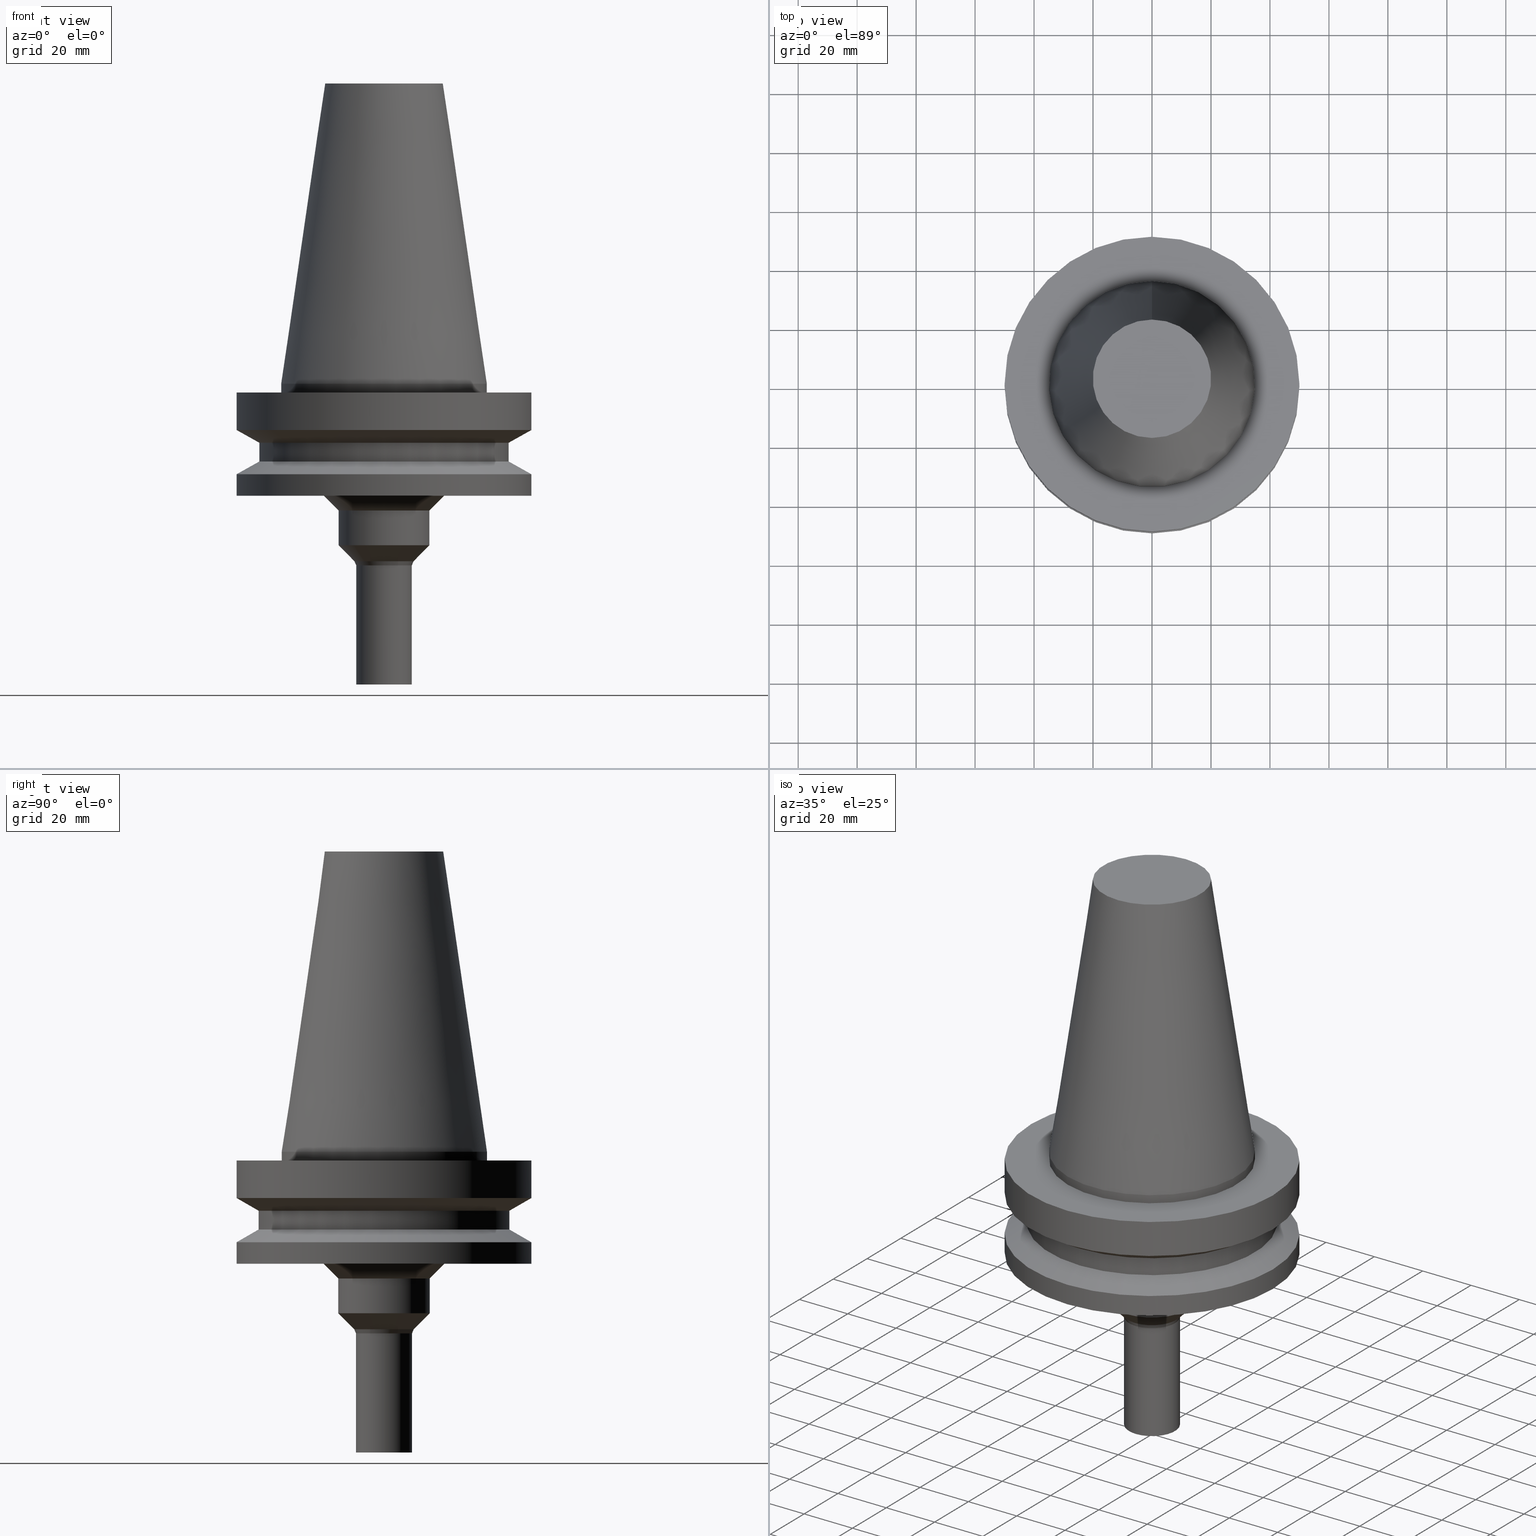
[diagram: canonical four-view strip — front | top / right | iso, engineering-drawing reading convention]
A machine part, canonical four-view strip (front | top / right | iso — engineering-drawing reading convention). The complete STEP part file that produces these views, byte-faithful:
ISO-10303-21;
HEADER;
FILE_DESCRIPTION((''),'1');
FILE_NAME('//Big_tech03/bigt/Translate/BIG-HP/\X2\30C030A630F330ED30FC30C930C730FC30BF\X0\/201309/BT-BBT/BT-BBT50/21_CK\X2\FF8EFF9EFF70FF98FF9DFF78FF9EFF7CFF7DFF83FF91\X0\/01_CK\X2\FF8DFF9EFF70FF7DFF8EFF99FF80FF9E\X0\CK/BT50-CK1-135.stp','2013-09-16T05:15:05',(''),(''),'Spatial Interop R18','Kubotek KeyCreator V8.5.1 (14335)',' ');
FILE_SCHEMA(('CONFIG_CONTROL_DESIGN'));
ENDSEC;
DATA;
#1=DESIGN_CONTEXT('',#27,'design');
#2=APPLICATION_PROTOCOL_DEFINITION('INTERNATIONAL STANDARD','config_control_design',1994,#27);
#3=PRODUCT_CATEGORY_RELATIONSHIP('NONE','NONE',#28,#29);
#4=DATE_AND_TIME(#30,#31);
#5=DATE_TIME_ROLE('creation_date');
#6=DATE_TIME_ROLE('classification_date');
#7=PERSON_AND_ORGANIZATION_ROLE('creator');
#8=PERSON_AND_ORGANIZATION_ROLE('design_supplier');
#9=PERSON_AND_ORGANIZATION_ROLE('classification_officer');
#10=PERSON_AND_ORGANIZATION_ROLE('design_owner');
#11=APPROVAL_PERSON_ORGANIZATION(#32,#33,#34);
#12=APPROVAL_DATE_TIME(#4,#33);
#13=CC_DESIGN_APPROVAL(#33,(#35,#36,#37));
#14=CC_DESIGN_DATE_AND_TIME_ASSIGNMENT(#4,#5,(#37));
#15=CC_DESIGN_DATE_AND_TIME_ASSIGNMENT(#4,#6,(#35));
#16=CC_DESIGN_PERSON_AND_ORGANIZATION_ASSIGNMENT(#32,#10,(#38));
#17=CC_DESIGN_PERSON_AND_ORGANIZATION_ASSIGNMENT(#32,#7,(#37));
#18=CC_DESIGN_PERSON_AND_ORGANIZATION_ASSIGNMENT(#32,#7,(#36));
#19=CC_DESIGN_PERSON_AND_ORGANIZATION_ASSIGNMENT(#32,#8,(#36));
#20=CC_DESIGN_SECURITY_CLASSIFICATION(#35,(#36));
#21=CC_DESIGN_PERSON_AND_ORGANIZATION_ASSIGNMENT(#32,#9,(#35));
#22=SHAPE_DEFINITION_REPRESENTATION(#39,#40);
#23= (GEOMETRIC_REPRESENTATION_CONTEXT(3)GLOBAL_UNCERTAINTY_ASSIGNED_CONTEXT((#43))GLOBAL_UNIT_ASSIGNED_CONTEXT((#45,#46,#47))REPRESENTATION_CONTEXT('NONE','WORKSPACE'));
#27=APPLICATION_CONTEXT('CONFIGURATION CONTROLLED 3D DESIGNS OF MECHANICAL PARTS AND ASSEMBLIES');
#28=PRODUCT_CATEGORY('part','NONE');
#29=PRODUCT_RELATED_PRODUCT_CATEGORY('detail',' ',(#38));
#30=CALENDAR_DATE(2013,16,8);
#31=LOCAL_TIME(14,15,5.0,#49);
#32=PERSON_AND_ORGANIZATION(#50,#51);
#33=APPROVAL(#52,'SOLID MODEL');
#34=APPROVAL_ROLE('APPROVED');
#35=SECURITY_CLASSIFICATION('','',#53);
#36=PRODUCT_DEFINITION_FORMATION_WITH_SPECIFIED_SOURCE(' ','NONE',#38,.NOT_KNOWN.);
#37=PRODUCT_DEFINITION('NONE','NONE',#36,#1);
#38=PRODUCT('1','1','PART-1-DESC',(#54));
#39=PRODUCT_DEFINITION_SHAPE('NONE','NONE',#37);
#40=ADVANCED_BREP_SHAPE_REPRESENTATION('1',(#55,#56),#23);
#43=UNCERTAINTY_MEASURE_WITH_UNIT(LENGTH_MEASURE(1.0E-006),#45,'','');
#45= (CONVERSION_BASED_UNIT('MILLIMETRE',#59)LENGTH_UNIT()NAMED_UNIT(#62));
#46= (NAMED_UNIT(#64)PLANE_ANGLE_UNIT()SI_UNIT($,.RADIAN.));
#47= (NAMED_UNIT(#64)SOLID_ANGLE_UNIT()SI_UNIT($,.STERADIAN.));
#49=COORDINATED_UNIVERSAL_TIME_OFFSET(9,0,.AHEAD.);
#50=PERSON('','UNSPECIFIED',$,$,$,$);
#51=ORGANIZATION('UNSPECIFIED','UNSPECIFIED','UNSPECIFIED');
#52=APPROVAL_STATUS('approved');
#53=SECURITY_CLASSIFICATION_LEVEL('unclassified');
#54=MECHANICAL_CONTEXT('',#27,'mechanical');
#55=MANIFOLD_SOLID_BREP('1',#70);
#56=AXIS2_PLACEMENT_3D('',#71,#72,#73);
#59=LENGTH_MEASURE_WITH_UNIT(LENGTH_MEASURE(1.0),#74);
#62=DIMENSIONAL_EXPONENTS(1.0,0.0,0.0,0.0,0.0,0.0,0.0);
#64=DIMENSIONAL_EXPONENTS(0.0,0.0,0.0,0.0,0.0,0.0,0.0);
#70=CLOSED_SHELL('',(#75,#76,#77,#78,#79,#80,#81,#82,#83,#84,#85,#86,#87,#88,#89,#90));
#71=CARTESIAN_POINT('',(0.0,0.0,0.0));
#72=DIRECTION('',(0.0,0.0,1.0));
#73=DIRECTION('',(1.0,0.0,0.0));
#74= (NAMED_UNIT(#62)LENGTH_UNIT()SI_UNIT(.MILLI.,.METRE.));
#75=ADVANCED_FACE('',(#92),#93,.T.);
#76=ADVANCED_FACE('',(#94,#95),#96,.T.);
#77=ADVANCED_FACE('',(#97,#98),#99,.T.);
#78=ADVANCED_FACE('',(#100,#101),#102,.T.);
#79=ADVANCED_FACE('',(#103,#104),#105,.T.);
#80=ADVANCED_FACE('',(#106,#107),#108,.T.);
#81=ADVANCED_FACE('',(#109,#110),#111,.T.);
#82=ADVANCED_FACE('',(#112,#113),#114,.T.);
#83=ADVANCED_FACE('',(#115,#116),#117,.T.);
#84=ADVANCED_FACE('',(#118,#119),#120,.T.);
#85=ADVANCED_FACE('',(#121,#122),#123,.T.);
#86=ADVANCED_FACE('',(#124,#125),#126,.T.);
#87=ADVANCED_FACE('',(#127,#128),#129,.T.);
#88=ADVANCED_FACE('',(#130,#131),#132,.T.);
#89=ADVANCED_FACE('',(#133,#134),#135,.T.);
#90=ADVANCED_FACE('',(#136),#137,.T.);
#92=FACE_OUTER_BOUND('',#138,.T.);
#93=PLANE('',#139);
#94=FACE_BOUND('',#140,.T.);
#95=FACE_BOUND('',#141,.T.);
#96=CONICAL_SURFACE('',#142,27.5020833325942,0.144812498253157);
#97=FACE_BOUND('',#143,.T.);
#98=FACE_BOUND('',#144,.T.);
#99=CYLINDRICAL_SURFACE('',#145,34.925);
#100=FACE_OUTER_BOUND('',#146,.T.);
#101=FACE_BOUND('',#147,.T.);
#102=PLANE('',#148);
#103=FACE_BOUND('',#149,.T.);
#104=FACE_BOUND('',#150,.T.);
#105=CYLINDRICAL_SURFACE('',#151,50.0);
#106=FACE_BOUND('',#152,.T.);
#107=FACE_BOUND('',#153,.T.);
#108=CONICAL_SURFACE('',#154,46.25,1.04719755108882);
#109=FACE_BOUND('',#155,.T.);
#110=FACE_BOUND('',#156,.T.);
#111=CYLINDRICAL_SURFACE('',#157,42.5);
#112=FACE_BOUND('',#158,.T.);
#113=FACE_BOUND('',#159,.T.);
#114=CONICAL_SURFACE('',#160,46.25,1.04719755108882);
#115=FACE_BOUND('',#161,.T.);
#116=FACE_BOUND('',#162,.T.);
#117=CYLINDRICAL_SURFACE('',#163,50.0);
#118=FACE_BOUND('',#164,.T.);
#119=FACE_OUTER_BOUND('',#165,.T.);
#120=PLANE('',#166);
#121=FACE_BOUND('',#167,.T.);
#122=FACE_BOUND('',#168,.T.);
#123=CONICAL_SURFACE('',#169,18.0,0.785398163397448);
#124=FACE_BOUND('',#170,.T.);
#125=FACE_BOUND('',#171,.T.);
#126=CYLINDRICAL_SURFACE('',#172,15.5);
#127=FACE_BOUND('',#173,.T.);
#128=FACE_BOUND('',#174,.T.);
#129=CONICAL_SURFACE('',#175,12.7928932171354,0.785398163397448);
#130=FACE_BOUND('',#176,.T.);
#131=FACE_BOUND('',#177,.T.);
#132=CONICAL_SURFACE('',#178,9.79289321713542,0.392699081698724);
#133=FACE_BOUND('',#179,.T.);
#134=FACE_BOUND('',#180,.T.);
#135=CYLINDRICAL_SURFACE('',#181,9.5);
#136=FACE_OUTER_BOUND('',#182,.T.);
#137=PLANE('',#183);
#138=EDGE_LOOP('',(#184));
#139=AXIS2_PLACEMENT_3D('',#185,#186,#187);
#140=EDGE_LOOP('',(#188));
#141=EDGE_LOOP('',(#189));
#142=AXIS2_PLACEMENT_3D('',#190,#191,#192);
#143=EDGE_LOOP('',(#193));
#144=EDGE_LOOP('',(#194));
#145=AXIS2_PLACEMENT_3D('',#195,#196,#197);
#146=EDGE_LOOP('',(#198));
#147=EDGE_LOOP('',(#199));
#148=AXIS2_PLACEMENT_3D('',#200,#201,#202);
#149=EDGE_LOOP('',(#203));
#150=EDGE_LOOP('',(#204));
#151=AXIS2_PLACEMENT_3D('',#205,#206,#207);
#152=EDGE_LOOP('',(#208));
#153=EDGE_LOOP('',(#209));
#154=AXIS2_PLACEMENT_3D('',#210,#211,#212);
#155=EDGE_LOOP('',(#213));
#156=EDGE_LOOP('',(#214));
#157=AXIS2_PLACEMENT_3D('',#215,#216,#217);
#158=EDGE_LOOP('',(#218));
#159=EDGE_LOOP('',(#219));
#160=AXIS2_PLACEMENT_3D('',#220,#221,#222);
#161=EDGE_LOOP('',(#223));
#162=EDGE_LOOP('',(#224));
#163=AXIS2_PLACEMENT_3D('',#225,#226,#227);
#164=EDGE_LOOP('',(#228));
#165=EDGE_LOOP('',(#229));
#166=AXIS2_PLACEMENT_3D('',#230,#231,#232);
#167=EDGE_LOOP('',(#233));
#168=EDGE_LOOP('',(#234));
#169=AXIS2_PLACEMENT_3D('',#235,#236,#237);
#170=EDGE_LOOP('',(#238));
#171=EDGE_LOOP('',(#239));
#172=AXIS2_PLACEMENT_3D('',#240,#241,#242);
#173=EDGE_LOOP('',(#243));
#174=EDGE_LOOP('',(#244));
#175=AXIS2_PLACEMENT_3D('',#245,#246,#247);
#176=EDGE_LOOP('',(#248));
#177=EDGE_LOOP('',(#249));
#178=AXIS2_PLACEMENT_3D('',#250,#251,#252);
#179=EDGE_LOOP('',(#253));
#180=EDGE_LOOP('',(#254));
#181=AXIS2_PLACEMENT_3D('',#255,#256,#257);
#182=EDGE_LOOP('',(#258));
#183=AXIS2_PLACEMENT_3D('',#259,#260,#261);
#184=ORIENTED_EDGE('',*,*,#262,.F.);
#185=CARTESIAN_POINT('',(-6.23345220766003E-015,10.0395833325942,101.8));
#186=DIRECTION('',(-6.12323399573677E-017,-1.22464679914735E-016,1.0));
#187=DIRECTION('',(1.23259516440783E-032,-1.0,-1.22464679914735E-016));
#188=ORIENTED_EDGE('',*,*,#263,.F.);
#189=ORIENTED_EDGE('',*,*,#262,.T.);
#190=CARTESIAN_POINT('',(-3.11672610383001E-015,-6.23345220766003E-015,50.9));
#191=DIRECTION('',(6.12323399573677E-017,1.22464679914678E-016,-1.0));
#192=DIRECTION('',(-1.232595164408E-032,1.0,1.22464679914678E-016));
#193=ORIENTED_EDGE('',*,*,#264,.F.);
#194=ORIENTED_EDGE('',*,*,#263,.T.);
#195=CARTESIAN_POINT('',(9.18485099360515E-017,1.83697019872103E-016,-1.5));
#196=DIRECTION('',(-6.12323399573677E-017,-1.22464679914705E-016,1.0));
#197=DIRECTION('',(-1.23259516440742E-032,1.0,1.22464679914705E-016));
#198=ORIENTED_EDGE('',*,*,#265,.F.);
#199=ORIENTED_EDGE('',*,*,#264,.T.);
#200=CARTESIAN_POINT('',(1.83697019872102E-016,42.4625,-2.99999999999999));
#201=DIRECTION('',(-6.12323399573677E-017,-1.22464679914735E-016,1.0));
#202=DIRECTION('',(1.23259516440783E-032,-1.0,-1.22464679914735E-016));
#203=ORIENTED_EDGE('',*,*,#266,.F.);
#204=ORIENTED_EDGE('',*,*,#265,.T.);
#205=CARTESIAN_POINT('',(5.72522378601387E-016,1.14504475720277E-015,-9.34999999999999));
#206=DIRECTION('',(-6.12323399573677E-017,-1.22464679914672E-016,1.0));
#207=DIRECTION('',(-1.23259516440783E-032,1.0,1.22464679914672E-016));
#208=ORIENTED_EDGE('',*,*,#267,.F.);
#209=ORIENTED_EDGE('',*,*,#266,.T.);
#210=CARTESIAN_POINT('',(1.09391964220428E-015,2.18783928440857E-015,-17.86506351));
#211=DIRECTION('',(-6.12323399573676E-017,-1.22464679914679E-016,1.0));
#212=DIRECTION('',(-1.23259516440783E-032,1.0,1.22464679914679E-016));
#213=ORIENTED_EDGE('',*,*,#268,.F.);
#214=ORIENTED_EDGE('',*,*,#267,.T.);
#215=CARTESIAN_POINT('',(1.42059028701093E-015,2.84118057402186E-015,-23.2));
#216=DIRECTION('',(-6.12323399573677E-017,-1.22464679914687E-016,1.0));
#217=DIRECTION('',(-1.23259516440783E-032,1.0,1.22464679914687E-016));
#218=ORIENTED_EDGE('',*,*,#269,.F.);
#219=ORIENTED_EDGE('',*,*,#268,.T.);
#220=CARTESIAN_POINT('',(1.74726093181758E-015,3.49452186363515E-015,-28.53493649));
#221=DIRECTION('',(6.12323399573676E-017,1.22464679914679E-016,-1.0));
#222=DIRECTION('',(-1.23259516440783E-032,1.0,1.22464679914679E-016));
#223=ORIENTED_EDGE('',*,*,#270,.F.);
#224=ORIENTED_EDGE('',*,*,#269,.T.);
#225=CARTESIAN_POINT('',(2.10333087753558E-015,4.20666175507116E-015,-34.35));
#226=DIRECTION('',(-6.12323399573677E-017,-1.22464679914672E-016,1.0));
#227=DIRECTION('',(-1.23259516440783E-032,1.0,1.22464679914672E-016));
#228=ORIENTED_EDGE('',*,*,#271,.F.);
#229=ORIENTED_EDGE('',*,*,#270,.T.);
#230=CARTESIAN_POINT('',(2.32682891837997E-015,35.25,-38.0));
#231=DIRECTION('',(6.12323399573677E-017,1.22464679914735E-016,-1.0));
#232=DIRECTION('',(-1.23259516440783E-032,1.0,1.22464679914735E-016));
#233=ORIENTED_EDGE('',*,*,#272,.F.);
#234=ORIENTED_EDGE('',*,*,#271,.T.);
#235=CARTESIAN_POINT('',(2.47990976827339E-015,4.95981953654678E-015,-40.5));
#236=DIRECTION('',(-6.12323399573677E-017,-1.22464679914693E-016,1.0));
#237=DIRECTION('',(-1.23259516440783E-032,1.0,1.22464679914693E-016));
#238=ORIENTED_EDGE('',*,*,#273,.F.);
#239=ORIENTED_EDGE('',*,*,#272,.T.);
#240=CARTESIAN_POINT('',(2.99426142391528E-015,5.98852284783056E-015,-48.9));
#241=DIRECTION('',(-6.12323399573677E-017,-1.2246467991478E-016,1.0));
#242=DIRECTION('',(-1.23259516440783E-032,1.0,1.2246467991478E-016));
#243=ORIENTED_EDGE('',*,*,#274,.F.);
#244=ORIENTED_EDGE('',*,*,#273,.T.);
#245=CARTESIAN_POINT('',(3.52129471249301E-015,7.04258942498601E-015,-57.5071067828646));
#246=DIRECTION('',(-6.12323399573677E-017,-1.22464679914751E-016,1.0));
#247=DIRECTION('',(-1.23259516440773E-032,1.0,1.22464679914751E-016));
#248=ORIENTED_EDGE('',*,*,#275,.F.);
#249=ORIENTED_EDGE('',*,*,#274,.T.);
#250=CARTESIAN_POINT('',(3.73035499788598E-015,7.46070999577196E-015,-60.9213203428646));
#251=DIRECTION('',(-6.12323399573677E-017,-1.22464679914769E-016,1.0));
#252=DIRECTION('',(-1.2325951644077E-032,1.0,1.22464679914769E-016));
#253=ORIENTED_EDGE('',*,*,#276,.F.);
#254=ORIENTED_EDGE('',*,*,#275,.T.);
#255=CARTESIAN_POINT('',(5.0096757380506E-015,1.00193514761012E-014,-81.81421356));
#256=DIRECTION('',(-6.12323399573677E-017,-1.22464679914665E-016,1.0));
#257=DIRECTION('',(-1.23259516440783E-032,1.0,1.22464679914665E-016));
#258=ORIENTED_EDGE('',*,*,#276,.T.);
#259=CARTESIAN_POINT('',(6.2456986756515E-015,4.75000000000001,-102.0));
#260=DIRECTION('',(6.12323399573677E-017,1.22464679914735E-016,-1.0));
#261=DIRECTION('',(-1.23259516440783E-032,1.0,1.22464679914735E-016));
#262=EDGE_CURVE('',#277,#277,#278,.T.);
#263=EDGE_CURVE('',#279,#279,#280,.T.);
#264=EDGE_CURVE('',#281,#281,#282,.T.);
#265=EDGE_CURVE('',#283,#283,#284,.T.);
#266=EDGE_CURVE('',#285,#285,#286,.T.);
#267=EDGE_CURVE('',#287,#287,#288,.T.);
#268=EDGE_CURVE('',#289,#289,#290,.T.);
#269=EDGE_CURVE('',#291,#291,#292,.T.);
#270=EDGE_CURVE('',#293,#293,#294,.T.);
#271=EDGE_CURVE('',#295,#295,#296,.T.);
#272=EDGE_CURVE('',#297,#297,#298,.T.);
#273=EDGE_CURVE('',#299,#299,#300,.T.);
#274=EDGE_CURVE('',#301,#301,#302,.T.);
#275=EDGE_CURVE('',#303,#303,#304,.T.);
#276=EDGE_CURVE('',#305,#305,#306,.T.);
#277=VERTEX_POINT('',#307);
#278=CIRCLE('',#308,20.0791666651885);
#279=VERTEX_POINT('',#309);
#280=CIRCLE('',#310,34.925);
#281=VERTEX_POINT('',#311);
#282=CIRCLE('',#312,34.925);
#283=VERTEX_POINT('',#313);
#284=CIRCLE('',#314,50.0);
#285=VERTEX_POINT('',#315);
#286=CIRCLE('',#316,50.0);
#287=VERTEX_POINT('',#317);
#288=CIRCLE('',#318,42.5);
#289=VERTEX_POINT('',#319);
#290=CIRCLE('',#320,42.5);
#291=VERTEX_POINT('',#321);
#292=CIRCLE('',#322,50.0);
#293=VERTEX_POINT('',#323);
#294=CIRCLE('',#324,50.0);
#295=VERTEX_POINT('',#325);
#296=CIRCLE('',#326,20.5);
#297=VERTEX_POINT('',#327);
#298=CIRCLE('',#328,15.5);
#299=VERTEX_POINT('',#329);
#300=CIRCLE('',#330,15.5);
#301=VERTEX_POINT('',#331);
#302=CIRCLE('',#332,10.0857864342708);
#303=VERTEX_POINT('',#333);
#304=CIRCLE('',#334,9.5);
#305=VERTEX_POINT('',#335);
#306=CIRCLE('',#336,9.5);
#307=CARTESIAN_POINT('',(-6.23345220766003E-015,20.0791666651884,101.8));
#308=AXIS2_PLACEMENT_3D('',#337,#338,#339);
#309=CARTESIAN_POINT('',(-4.30483861169435E-031,34.925,4.27707894602213E-015));
#310=AXIS2_PLACEMENT_3D('',#340,#341,#342);
#311=CARTESIAN_POINT('',(1.83697019872103E-016,34.925,-3.0));
#312=AXIS2_PLACEMENT_3D('',#343,#344,#345);
#313=CARTESIAN_POINT('',(1.83697019872102E-016,50.0,-2.99999999999999));
#314=AXIS2_PLACEMENT_3D('',#346,#347,#348);
#315=CARTESIAN_POINT('',(9.61347737330672E-016,50.0,-15.7));
#316=AXIS2_PLACEMENT_3D('',#349,#350,#351);
#317=CARTESIAN_POINT('',(1.2264915470779E-015,42.5,-20.03012702));
#318=AXIS2_PLACEMENT_3D('',#352,#353,#354);
#319=CARTESIAN_POINT('',(1.61468902694396E-015,42.5,-26.36987298));
#320=AXIS2_PLACEMENT_3D('',#355,#356,#357);
#321=CARTESIAN_POINT('',(1.87983283669119E-015,50.0,-30.7));
#322=AXIS2_PLACEMENT_3D('',#358,#359,#360);
#323=CARTESIAN_POINT('',(2.32682891837997E-015,50.0,-38.0));
#324=AXIS2_PLACEMENT_3D('',#361,#362,#363);
#325=CARTESIAN_POINT('',(2.32682891837997E-015,20.5,-38.0));
#326=AXIS2_PLACEMENT_3D('',#364,#365,#366);
#327=CARTESIAN_POINT('',(2.63299061816681E-015,15.5,-43.0));
#328=AXIS2_PLACEMENT_3D('',#367,#368,#369);
#329=CARTESIAN_POINT('',(3.35553222966375E-015,15.5,-54.8));
#330=AXIS2_PLACEMENT_3D('',#370,#371,#372);
#331=CARTESIAN_POINT('',(3.68705719532227E-015,10.0857864342708,-60.2142135657292));
#332=AXIS2_PLACEMENT_3D('',#373,#374,#375);
#333=CARTESIAN_POINT('',(3.7736528004497E-015,9.50000000000001,-61.62842712));
#334=AXIS2_PLACEMENT_3D('',#376,#377,#378);
#335=CARTESIAN_POINT('',(6.2456986756515E-015,9.50000000000001,-102.0));
#336=AXIS2_PLACEMENT_3D('',#379,#380,#381);
#337=CARTESIAN_POINT('',(-6.23345220766003E-015,-1.24669044153201E-014,101.8));
#338=DIRECTION('',(6.12323399573677E-017,1.22464679914793E-016,-1.0));
#339=DIRECTION('',(-1.23259516440811E-032,1.0,1.22464679914793E-016));
#340=CARTESIAN_POINT('',(0.0,0.0,0.0));
#341=DIRECTION('',(6.12323399573677E-017,1.22464679914705E-016,-1.0));
#342=DIRECTION('',(-1.23259516440742E-032,1.0,1.22464679914705E-016));
#343=CARTESIAN_POINT('',(1.83697019872103E-016,3.67394039744206E-016,-3.0));
#344=DIRECTION('',(6.12323399573677E-017,1.22464679914705E-016,-1.0));
#345=DIRECTION('',(-1.23259516440742E-032,1.0,1.22464679914705E-016));
#346=CARTESIAN_POINT('',(1.83697019872103E-016,3.67394039744206E-016,-3.0));
#347=DIRECTION('',(6.12323399573677E-017,1.22464679914672E-016,-1.0));
#348=DIRECTION('',(-1.23259516440783E-032,1.0,1.22464679914672E-016));
#349=CARTESIAN_POINT('',(9.61347737330673E-016,1.92269547466134E-015,-15.7));
#350=DIRECTION('',(6.12323399573677E-017,1.22464679914672E-016,-1.0));
#351=DIRECTION('',(-1.23259516440783E-032,1.0,1.22464679914672E-016));
#352=CARTESIAN_POINT('',(1.2264915470779E-015,2.45298309415579E-015,-20.03012702));
#353=DIRECTION('',(6.12323399573677E-017,1.22464679914687E-016,-1.0));
#354=DIRECTION('',(-1.23259516440783E-032,1.0,1.22464679914687E-016));
#355=CARTESIAN_POINT('',(1.61468902694396E-015,3.22937805388793E-015,-26.36987298));
#356=DIRECTION('',(6.12323399573677E-017,1.22464679914687E-016,-1.0));
#357=DIRECTION('',(-1.23259516440783E-032,1.0,1.22464679914687E-016));
#358=CARTESIAN_POINT('',(1.87983283669119E-015,3.75966567338237E-015,-30.7));
#359=DIRECTION('',(6.12323399573677E-017,1.22464679914672E-016,-1.0));
#360=DIRECTION('',(-1.23259516440783E-032,1.0,1.22464679914672E-016));
#361=CARTESIAN_POINT('',(2.32682891837997E-015,4.65365783675994E-015,-38.0));
#362=DIRECTION('',(6.12323399573677E-017,1.22464679914672E-016,-1.0));
#363=DIRECTION('',(-1.23259516440783E-032,1.0,1.22464679914672E-016));
#364=CARTESIAN_POINT('',(2.32682891837997E-015,4.65365783675994E-015,-38.0));
#365=DIRECTION('',(6.12323399573677E-017,1.22464679914785E-016,-1.0));
#366=DIRECTION('',(-1.23259516440783E-032,1.0,1.22464679914785E-016));
#367=CARTESIAN_POINT('',(2.63299061816681E-015,5.26598123633362E-015,-43.0));
#368=DIRECTION('',(6.12323399573677E-017,1.2246467991478E-016,-1.0));
#369=DIRECTION('',(-1.23259516440783E-032,1.0,1.2246467991478E-016));
#370=CARTESIAN_POINT('',(3.35553222966375E-015,6.71106445932749E-015,-54.8));
#371=DIRECTION('',(6.12323399573677E-017,1.2246467991478E-016,-1.0));
#372=DIRECTION('',(-1.23259516440783E-032,1.0,1.2246467991478E-016));
#373=CARTESIAN_POINT('',(3.68705719532227E-015,7.37411439064453E-015,-60.2142135657292));
#374=DIRECTION('',(6.12323399573677E-017,1.22464679914707E-016,-1.0));
#375=DIRECTION('',(-1.23259516440758E-032,1.0,1.22464679914707E-016));
#376=CARTESIAN_POINT('',(3.7736528004497E-015,7.54730560089939E-015,-61.62842712));
#377=DIRECTION('',(6.12323399573677E-017,1.22464679914665E-016,-1.0));
#378=DIRECTION('',(-1.23259516440783E-032,1.0,1.22464679914665E-016));
#379=CARTESIAN_POINT('',(6.2456986756515E-015,1.2491397351303E-014,-102.0));
#380=DIRECTION('',(6.12323399573677E-017,1.22464679914665E-016,-1.0));
#381=DIRECTION('',(-1.23259516440783E-032,1.0,1.22464679914665E-016));
ENDSEC;
END-ISO-10303-21;
